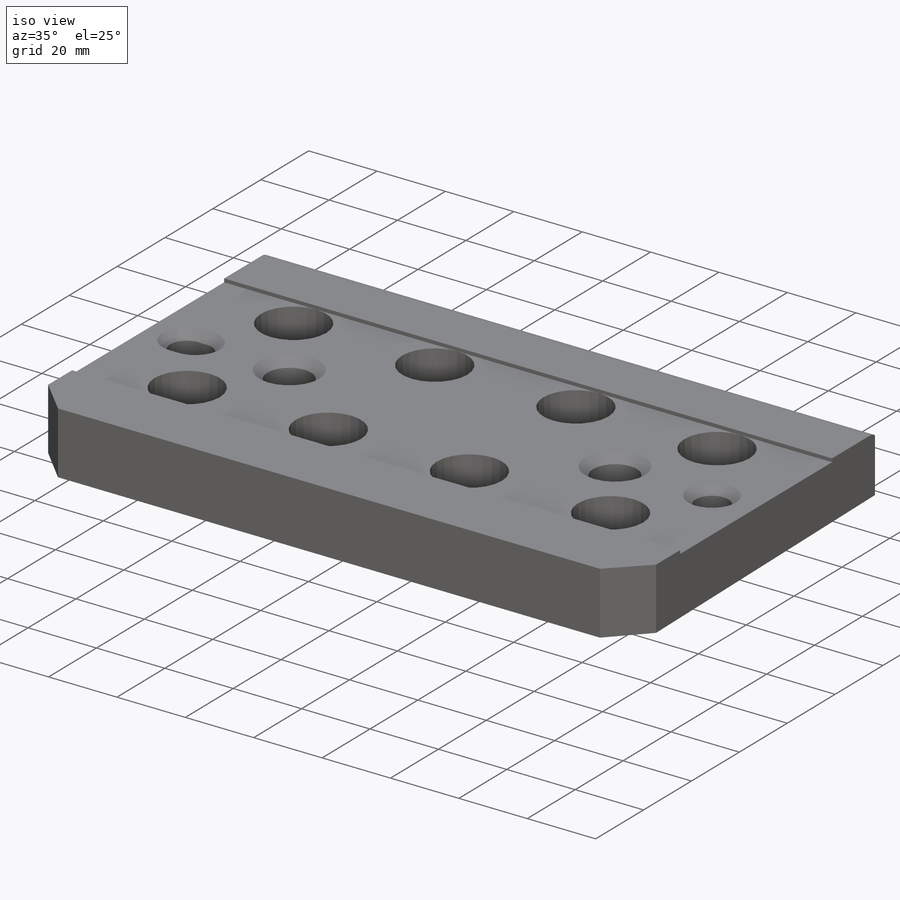
[diagram: iso view]
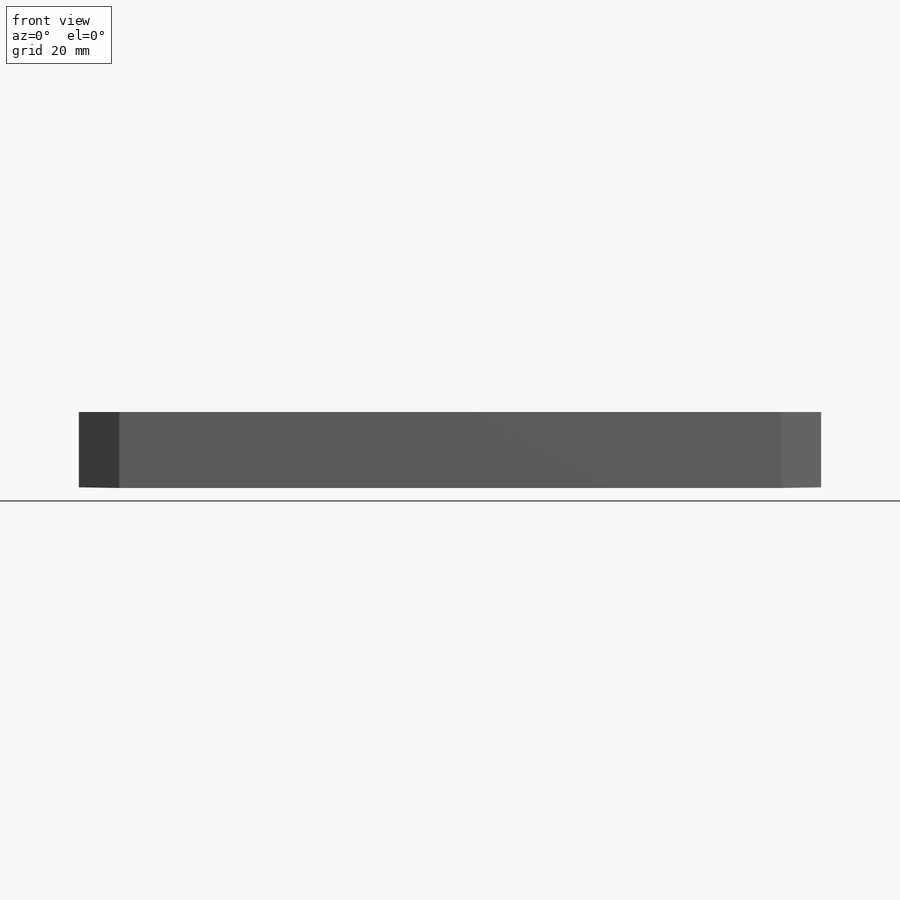
[diagram: front view]
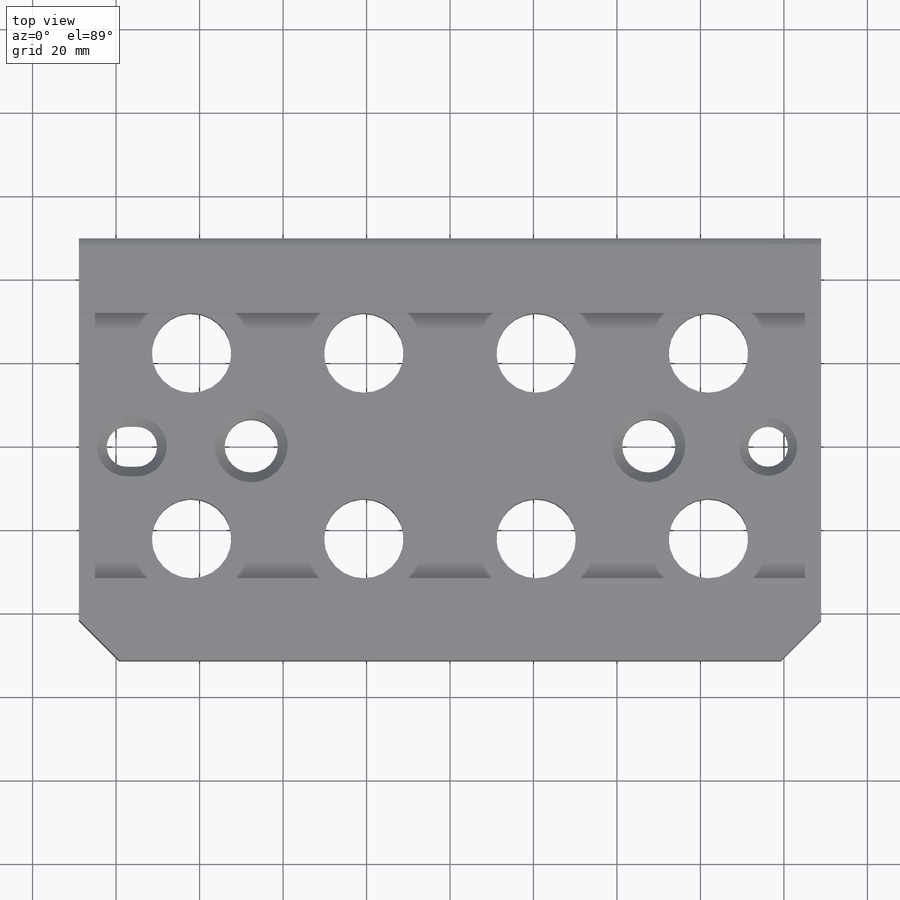
[diagram: top view]
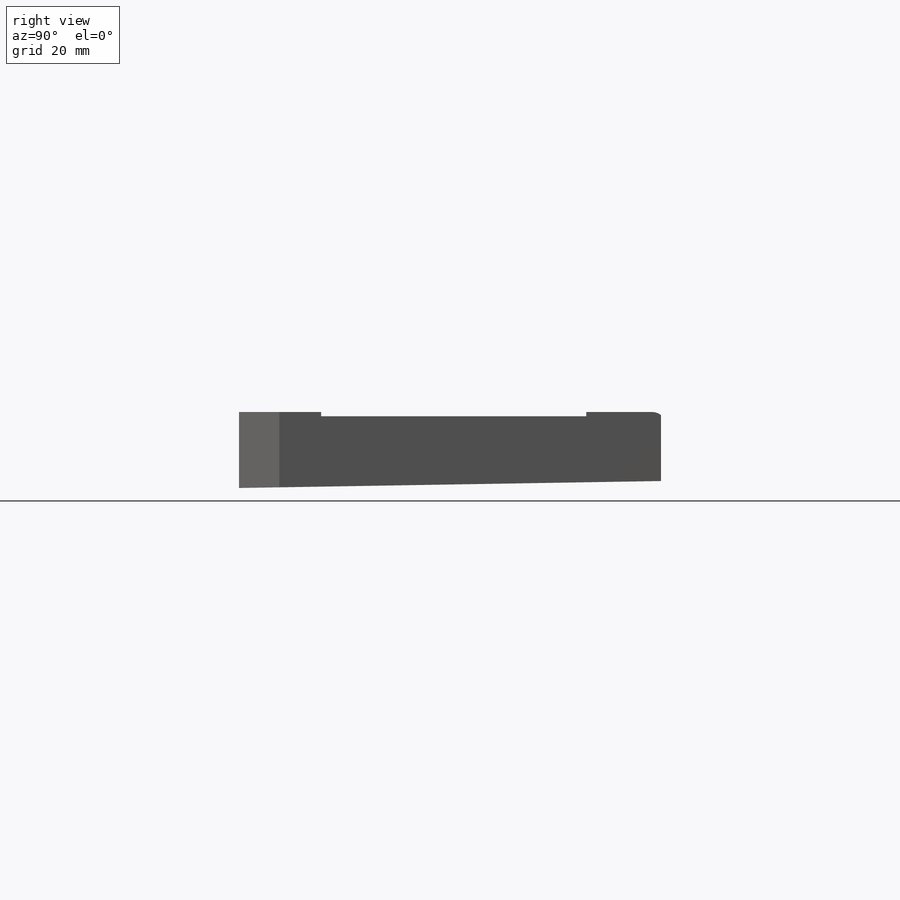
[diagram: right view]
SOLIDWORKS PART (.sldprt)
format: sldprt  version: not decoded by parser v0  size: 1,066,496 bytes
history: native  units: mm
features: sketch x11, hole x3, cut_extrude x3, chamfer x3, extrude x2, material x1 + 1 further entry (+13 scaffold rows collapsed)
feature tree (37):
  scaffold x13  (default folders/planes/origin — collapsed)
  material  "304 SSTL"
  "Origin"  ID=-1
  sketch  "Sketch1"  dims[D1=18.5166mm D2=95.25mm D3=3.81mm]
  extrude  "Extrude1"  Depth=177.8mm
  sketch  "Sketch10"  dims[D1=0.762mm D2=2.032mm]
  extrude  "Extrude5"  [1 undecoded]
  hole  "3/4 (0.75) Diameter Hole1"  Diameter=19.05mm Depth=18.5166mm
  sketch  "Sketch5"  dims[c1.D1=41.275mm c1.D2=25.4mm c1.D3=44.45mm c2.D2=22.225mm]
  sketch  "Sketch4"  dims[hole-wizard template sketch: 60 standard entries collapsed; hole parameters kept: c18.Thru Hole Depth=18.5166mm]
  sketch  "Sketch6"  dims[c1.D1=15.875mm c1.D2=15.875mm c1.D3=25.4mm c2.D2=81.534mm c2.D1=31.75mm c3.D2=31.75mm]
  cut_extrude  "Extrude2"  Depth=1.016mm
  chamfer  "Chamfer10"  Distance=9.652mm Angle=45deg
  sketch  "Sketch35"  dims[c1.D1=16.5354mm c1.D2=101.092mm c2.D2=0.944deg c2.D3=16.5354mm]
  cut_extrude  "Extrude11"  [1 undecoded]
  hole  "3/8 (0.375) Diameter Hole1"  Diameter=9.54278mm Depth=16.858504mm
  sketch  "Sketch18"  dims[c1.D1=49.657mm c1.D2=152.4mm c2.D1=12.7mm c2.D2=49.657mm c3.D1=165.1mm]
  sketch  "Sketch17"  dims[hole-wizard template sketch: 40 standard entries collapsed; hole parameters kept: c13.Hole Depth=~16.858504mm c13.Near C'Sink Dia.=14.224mm c13.D4=~33.297463mm c13.Near C'Sink Angle=90.0deg c14.D5=~14.816244mm c14.Drill Angle=118.0deg]
  sketch  "Sketch19"  dims[c1.D1=152.4mm c1.D2=2.54mm c2.D1=152.4mm]
  cut_extrude  "Extrude8"  [1 undecoded]
  hole  "1/2 (0.5) Diameter Hole4"  Diameter=12.7508mm Depth=17.185133mm
  sketch  "Sketch27"  dims[D1=95.25mm D2=47.625mm D3=22.225mm]
  sketch  "Sketch26"  dims[hole-wizard template sketch: 46 standard entries collapsed; hole parameters kept: c15.Thru Hole Dia.=12.7508mm c15.Thru Hole Depth=~17.185133mm c15.Near C'Sink Dia.=17.526mm c15.D4=~3.666174mm c15.Near C'Sink Angle=90.0deg c15.Far C'Sink Dia.=17.526mm c15.D6=~9.919017mm c15.Far C'Sink Angle=90.0deg]
  chamfer  "Chamfer13"  Distance=2.286mm Angle=45deg
  chamfer  "Chamfer19"  Distance=1.27mm Angle=45deg
decode coverage: 19 of 22 modeling features carry decoded parameters; 1 rows unclassified (native names shown)
note: ~ marks probable driven/reference dimensions
note: 3 parameter values undecoded
summary: no parameter record found for 3 features
note: suppression state not decoded; provenance and decode notes live in map.json
